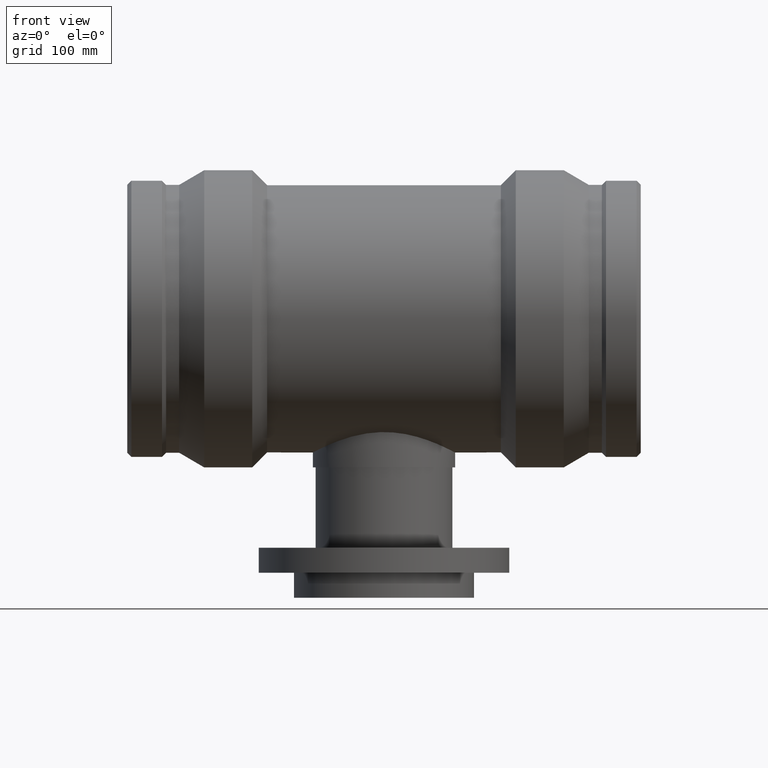
[diagram: clean part render]
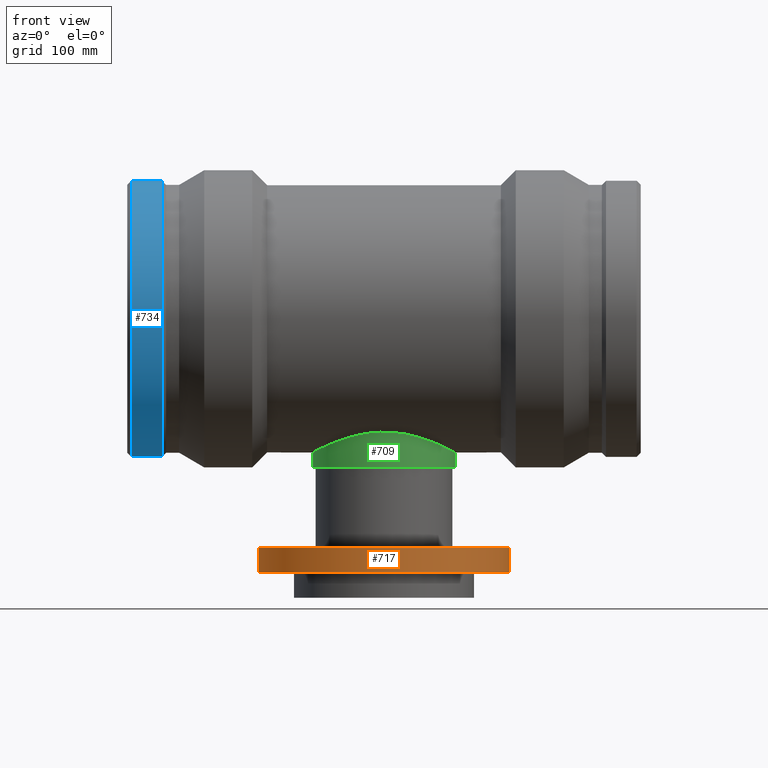
[diagram: same view with three faces highlighted in distinct colors, each labeled with its STEP entity id]
A machine part, front view with three faces highlighted in distinct colors.
Their STEP definitions:

[orange] entity #717 — the highlighted cylindrical surface (bore or boss wall) has radius 110 mm, axis along (-0, 0, -1).
#69=FACE_BOUND('',#319,.T.);
#145=CIRCLE('',#802,110.);
#146=CIRCLE('',#804,110.);
#198=CYLINDRICAL_SURFACE('',#803,110.);
#233=FACE_OUTER_BOUND('',#318,.T.);
#318=EDGE_LOOP('',(#604));
#319=EDGE_LOOP('',(#605));
#446=VERTEX_POINT('',#1538);
#447=VERTEX_POINT('',#1541);
#516=EDGE_CURVE('',#446,#446,#145,.T.);
#517=EDGE_CURVE('',#447,#447,#146,.T.);
#604=ORIENTED_EDGE('',*,*,#516,.T.);
#605=ORIENTED_EDGE('',*,*,#517,.F.);
#717=ADVANCED_FACE('',(#233,#69),#198,.T.);
#802=AXIS2_PLACEMENT_3D('',#1539,#969,#970);
#803=AXIS2_PLACEMENT_3D('',#1540,#971,#972);
#804=AXIS2_PLACEMENT_3D('',#1542,#973,#974);
#969=DIRECTION('center_axis',(-1.22464679914735E-16,0.,-1.));
#970=DIRECTION('ref_axis',(1.,0.,-1.22464679914735E-16));
#971=DIRECTION('center_axis',(-1.22464679914735E-16,0.,-1.));
#972=DIRECTION('ref_axis',(-1.,0.,0.));
#973=DIRECTION('center_axis',(-1.22464679914735E-16,0.,-1.));
#974=DIRECTION('ref_axis',(1.,0.,-1.22464679914735E-16));
#1538=CARTESIAN_POINT('',(-110.,0.,-201.));
#1539=CARTESIAN_POINT('Origin',(-2.46154006628618E-14,0.,-201.));
#1540=CARTESIAN_POINT('Origin',(-2.59625121419239E-14,0.,-212.));
#1541=CARTESIAN_POINT('',(-110.,0.,-223.));
#1542=CARTESIAN_POINT('Origin',(-2.7309623620986E-14,0.,-223.));

[blue] entity #734 — the highlighted cylindrical surface (bore or boss wall) has radius 121.365 mm, axis along (1, 0, 0).
#93=FACE_BOUND('',#360,.T.);
#94=FACE_BOUND('',#361,.T.);
#161=CIRCLE('',#835,121.365);
#162=CIRCLE('',#837,121.365);
#204=CYLINDRICAL_SURFACE('',#836,121.365);
#250=FACE_OUTER_BOUND('',#359,.T.);
#359=EDGE_LOOP('',(#645));
#360=EDGE_LOOP('',(#646));
#361=EDGE_LOOP('',(#647));
#418=B_SPLINE_CURVE_WITH_KNOTS('',3,(#1617,#1618,#1619,#1620,#1621,#1622,
#1623,#1624,#1625,#1626,#1627,#1628,#1629,#1630,#1631,#1632,#1633,#1634,
#1635,#1636,#1637,#1638,#1639,#1640,#1641,#1642,#1643,#1644,#1645,#1646,
#1647,#1648,#1649,#1650),.UNSPECIFIED.,.T.,.F.,(4,2,2,2,2,2,2,2,2,2,2,2,
2,2,2,2,4),(0.,0.29509610945851,0.59019221891702,0.885097172749317,1.18000212658161,
1.47490708041391,1.76981203424621,2.06490814370472,2.36000425316323,2.65510036262174,
2.95019647208025,3.24510142591255,3.54000637974484,3.83491133357714,4.12981628740944,
4.42491239686795,4.72000850632646),.UNSPECIFIED.);
#461=VERTEX_POINT('',#1616);
#464=VERTEX_POINT('',#1657);
#465=VERTEX_POINT('',#1660);
#531=EDGE_CURVE('',#461,#461,#418,.T.);
#534=EDGE_CURVE('',#464,#464,#161,.T.);
#535=EDGE_CURVE('',#465,#465,#162,.T.);
#645=ORIENTED_EDGE('',*,*,#534,.T.);
#646=ORIENTED_EDGE('',*,*,#531,.T.);
#647=ORIENTED_EDGE('',*,*,#535,.F.);
#734=ADVANCED_FACE('',(#250,#93,#94),#204,.T.);
#835=AXIS2_PLACEMENT_3D('',#1658,#1035,#1036);
#836=AXIS2_PLACEMENT_3D('',#1659,#1037,#1038);
#837=AXIS2_PLACEMENT_3D('',#1661,#1039,#1040);
#1035=DIRECTION('center_axis',(1.,0.,0.));
#1036=DIRECTION('ref_axis',(0.,0.,-1.));
#1037=DIRECTION('center_axis',(1.,0.,0.));
#1038=DIRECTION('ref_axis',(0.,1.,0.));
#1039=DIRECTION('center_axis',(1.,0.,0.));
#1040=DIRECTION('ref_axis',(0.,0.,-1.));
#1616=CARTESIAN_POINT('',(-208.4,121.111496105121,-7.8402000088783));
#1617=CARTESIAN_POINT('Ctrl Pts',(-208.4,121.111496105121,-7.8402000088783));
#1618=CARTESIAN_POINT('Ctrl Pts',(-207.416346301805,121.111496105121,-7.8402000088783));
#1619=CARTESIAN_POINT('Ctrl Pts',(-206.367643359373,121.124789604106,-7.64264500917666));
#1620=CARTESIAN_POINT('Ctrl Pts',(-204.439825018296,121.172740010536,-6.8404500551413));
#1621=CARTESIAN_POINT('Ctrl Pts',(-203.560679035478,121.206699457432,-6.23584206225861));
#1622=CARTESIAN_POINT('Ctrl Pts',(-202.17392970318,121.270345628022,-4.842763753959));
#1623=CARTESIAN_POINT('Ctrl Pts',(-201.573561837684,121.304167108906,-3.96155652836328));
#1624=CARTESIAN_POINT('Ctrl Pts',(-200.777586483535,121.351831955943,-2.03169115880176));
#1625=CARTESIAN_POINT('Ctrl Pts',(-200.581978708083,121.365,-0.983016512774324));
#1626=CARTESIAN_POINT('Ctrl Pts',(-200.581978708083,121.365,0.983016512774325));
#1627=CARTESIAN_POINT('Ctrl Pts',(-200.777586483535,121.351831955943,2.03169115880179));
#1628=CARTESIAN_POINT('Ctrl Pts',(-201.573561837684,121.304167108906,3.96155652836331));
#1629=CARTESIAN_POINT('Ctrl Pts',(-202.17392970318,121.270345628022,4.842763753959));
#1630=CARTESIAN_POINT('Ctrl Pts',(-203.560679035478,121.206699457432,6.23584206225861));
#1631=CARTESIAN_POINT('Ctrl Pts',(-204.439825018296,121.172740010536,6.8404500551413));
#1632=CARTESIAN_POINT('Ctrl Pts',(-206.367643359373,121.124789604106,7.64264500917666));
#1633=CARTESIAN_POINT('Ctrl Pts',(-207.416346301805,121.111496105121,7.8402000088783));
#1634=CARTESIAN_POINT('Ctrl Pts',(-209.383653698195,121.111496105121,7.8402000088783));
#1635=CARTESIAN_POINT('Ctrl Pts',(-210.432356640627,121.124789604106,7.64264500917666));
#1636=CARTESIAN_POINT('Ctrl Pts',(-212.360174981704,121.172740010536,6.8404500551413));
#1637=CARTESIAN_POINT('Ctrl Pts',(-213.239320964523,121.206699457432,6.23584206225861));
#1638=CARTESIAN_POINT('Ctrl Pts',(-214.62607029682,121.270345628022,4.842763753959));
#1639=CARTESIAN_POINT('Ctrl Pts',(-215.226438162316,121.304167108906,3.96155652836329));
#1640=CARTESIAN_POINT('Ctrl Pts',(-216.022413516465,121.351831955943,2.03169115880177));
#1641=CARTESIAN_POINT('Ctrl Pts',(-216.218021291917,121.365,0.983016512774325));
#1642=CARTESIAN_POINT('Ctrl Pts',(-216.218021291917,121.365,-0.983016512774324));
#1643=CARTESIAN_POINT('Ctrl Pts',(-216.022413516465,121.351831955943,-2.03169115880177));
#1644=CARTESIAN_POINT('Ctrl Pts',(-215.226438162316,121.304167108906,-3.96155652836329));
#1645=CARTESIAN_POINT('Ctrl Pts',(-214.62607029682,121.270345628022,-4.842763753959));
#1646=CARTESIAN_POINT('Ctrl Pts',(-213.239320964523,121.206699457432,-6.23584206225861));
#1647=CARTESIAN_POINT('Ctrl Pts',(-212.360174981704,121.172740010536,-6.8404500551413));
#1648=CARTESIAN_POINT('Ctrl Pts',(-210.432356640627,121.124789604106,-7.64264500917666));
#1649=CARTESIAN_POINT('Ctrl Pts',(-209.383653698195,121.111496105121,-7.84020000887829));
#1650=CARTESIAN_POINT('Ctrl Pts',(-208.4,121.111496105121,-7.84020000887829));
#1657=CARTESIAN_POINT('',(-221.85905,121.365,0.));
#1658=CARTESIAN_POINT('Origin',(-221.85905,0.,0.));
#1659=CARTESIAN_POINT('Origin',(-208.4,0.,0.));
#1660=CARTESIAN_POINT('',(-194.94095,121.365,0.));
#1661=CARTESIAN_POINT('Origin',(-194.94095,0.,0.));

[green] entity #709 — the highlighted cylindrical surface (bore or boss wall) has radius 62.5 mm, axis along (-0, 0, -1).
#53=FACE_BOUND('',#295,.T.);
#138=CIRCLE('',#788,62.5);
#194=CYLINDRICAL_SURFACE('',#787,62.5);
#225=FACE_OUTER_BOUND('',#294,.T.);
#294=EDGE_LOOP('',(#580));
#295=EDGE_LOOP('',(#581));
#416=B_SPLINE_CURVE_WITH_KNOTS('',3,(#1453,#1454,#1455,#1456,#1457,#1458,
#1459,#1460,#1461,#1462,#1463,#1464,#1465,#1466,#1467,#1468,#1469,#1470,
#1471,#1472,#1473,#1474,#1475,#1476,#1477,#1478,#1479,#1480,#1481,#1482,
#1483,#1484,#1485,#1486,#1487,#1488,#1489,#1490,#1491,#1492,#1493,#1494,
#1495,#1496,#1497,#1498,#1499,#1500,#1501,#1502,#1503,#1504,#1505,#1506,
#1507,#1508,#1509,#1510,#1511,#1512,#1513,#1514,#1515,#1516,#1517,#1518),
 .UNSPECIFIED.,.T.,.F.,(4,2,2,2,2,2,2,2,2,2,2,2,2,2,2,2,2,2,2,2,2,2,2,2,
2,2,2,2,2,2,2,2,4),(0.,1.20718004671123,2.41436009342246,3.6215401401337,
4.82872018684493,6.0315126657023,7.23430514455968,8.43709762341705,9.63989010227442,
10.8426825811318,12.0454750599892,13.2482675388465,14.4510600177039,15.6582400644152,
16.8654201111264,18.0726001578376,19.2797802045489,20.4869602512601,21.6941402979713,
22.9013203446825,24.1085003913938,25.3112928702511,26.5140853491085,27.7168778279659,
28.9196703068233,30.1224627856806,31.325255264538,32.5280477433954,33.7308402222528,
34.938020268964,36.1452003156752,37.3523803623865,38.5595604090977),
 .UNSPECIFIED.);
#438=VERTEX_POINT('',#1450);
#439=VERTEX_POINT('',#1452);
#508=EDGE_CURVE('',#438,#438,#138,.T.);
#509=EDGE_CURVE('',#439,#439,#416,.T.);
#580=ORIENTED_EDGE('',*,*,#508,.F.);
#581=ORIENTED_EDGE('',*,*,#509,.F.);
#709=ADVANCED_FACE('',(#225,#53),#194,.T.);
#787=AXIS2_PLACEMENT_3D('',#1449,#939,#940);
#788=AXIS2_PLACEMENT_3D('',#1451,#941,#942);
#939=DIRECTION('center_axis',(-1.22464679914735E-16,0.,-1.));
#940=DIRECTION('ref_axis',(-1.,0.,0.));
#941=DIRECTION('center_axis',(-1.22464679914735E-16,0.,-1.));
#942=DIRECTION('ref_axis',(1.,0.,-1.22464679914735E-16));
#1449=CARTESIAN_POINT('Origin',(-7.99082036443648E-15,0.,-65.25));
#1450=CARTESIAN_POINT('',(-62.5,0.,-130.5));
#1451=CARTESIAN_POINT('Origin',(-1.5981640728873E-14,0.,-130.5));
#1452=CARTESIAN_POINT('',(-1.22124532708767E-14,62.5,-99.439692779091));
#1453=CARTESIAN_POINT('Ctrl Pts',(-1.22124532708767E-14,62.5,-99.439692779091));
#1454=CARTESIAN_POINT('Ctrl Pts',(-4.02393348903745,62.5,-99.439692779091));
#1455=CARTESIAN_POINT('Ctrl Pts',(-8.14961563923366,62.1053599372436,-99.691187477864));
#1456=CARTESIAN_POINT('Ctrl Pts',(-16.2939755540269,60.4813883252695,-100.684707156254));
#1457=CARTESIAN_POINT('Ctrl Pts',(-20.3130241794805,59.2527795533655,-101.42487240009));
#1458=CARTESIAN_POINT('Ctrl Pts',(-27.9772678113925,56.0427004076859,-103.233287223694));
#1459=CARTESIAN_POINT('Ctrl Pts',(-31.6300735132061,54.0586623142557,-104.300556964816));
#1460=CARTESIAN_POINT('Ctrl Pts',(-38.3710276162715,49.5021692808056,-106.538633318536));
#1461=CARTESIAN_POINT('Ctrl Pts',(-41.459359839794,46.9289878085245,-107.707406599836));
#1462=CARTESIAN_POINT('Ctrl Pts',(-46.9190479640442,41.4692996842743,-109.924743790305));
#1463=CARTESIAN_POINT('Ctrl Pts',(-49.4907469674574,38.3859551662737,-111.056273993475));
#1464=CARTESIAN_POINT('Ctrl Pts',(-54.0511383929314,31.643167175907,-113.162217714912));
#1465=CARTESIAN_POINT('Ctrl Pts',(-56.0401802321842,27.9834791281341,-114.135091193121));
#1466=CARTESIAN_POINT('Ctrl Pts',(-59.2562192010658,20.3046175182304,-115.748074180665));
#1467=CARTESIAN_POINT('Ctrl Pts',(-60.4857937250368,16.2779712978345,-116.388603481805));
#1468=CARTESIAN_POINT('Ctrl Pts',(-62.1079719242389,8.13040070708366,-117.239822391567));
#1469=CARTESIAN_POINT('Ctrl Pts',(-62.5,4.00930826285791,-117.45));
#1470=CARTESIAN_POINT('Ctrl Pts',(-62.5,-4.00930826285792,-117.45));
#1471=CARTESIAN_POINT('Ctrl Pts',(-62.1079719242389,-8.13040070708367,-117.239822391567));
#1472=CARTESIAN_POINT('Ctrl Pts',(-60.4857937250368,-16.2779712978345,-116.388603481805));
#1473=CARTESIAN_POINT('Ctrl Pts',(-59.2562192010658,-20.3046175182304,-115.748074180665));
#1474=CARTESIAN_POINT('Ctrl Pts',(-56.0401802321842,-27.9834791281341,-114.135091193121));
#1475=CARTESIAN_POINT('Ctrl Pts',(-54.0511383929314,-31.6431671759069,-113.162217714912));
#1476=CARTESIAN_POINT('Ctrl Pts',(-49.4907469674574,-38.3859551662737,-111.056273993475));
#1477=CARTESIAN_POINT('Ctrl Pts',(-46.9190479640442,-41.4692996842743,-109.924743790305));
#1478=CARTESIAN_POINT('Ctrl Pts',(-41.459359839794,-46.9289878085245,-107.707406599836));
#1479=CARTESIAN_POINT('Ctrl Pts',(-38.3710276162715,-49.5021692808056,-106.538633318536));
#1480=CARTESIAN_POINT('Ctrl Pts',(-31.6300735132061,-54.0586623142557,-104.300556964816));
#1481=CARTESIAN_POINT('Ctrl Pts',(-27.9772678113925,-56.0427004076859,-103.233287223694));
#1482=CARTESIAN_POINT('Ctrl Pts',(-20.3130241794805,-59.2527795533655,-101.42487240009));
#1483=CARTESIAN_POINT('Ctrl Pts',(-16.2939755540269,-60.4813883252695,-100.684707156254));
#1484=CARTESIAN_POINT('Ctrl Pts',(-8.14961563923364,-62.1053599372436,-99.691187477864));
#1485=CARTESIAN_POINT('Ctrl Pts',(-4.02393348903744,-62.5,-99.439692779091));
#1486=CARTESIAN_POINT('Ctrl Pts',(4.02393348903742,-62.5,-99.439692779091));
#1487=CARTESIAN_POINT('Ctrl Pts',(8.14961563923363,-62.1053599372436,-99.691187477864));
#1488=CARTESIAN_POINT('Ctrl Pts',(16.2939755540268,-60.4813883252695,-100.684707156254));
#1489=CARTESIAN_POINT('Ctrl Pts',(20.3130241794804,-59.2527795533655,-101.42487240009));
#1490=CARTESIAN_POINT('Ctrl Pts',(27.9772678113924,-56.0427004076859,-103.233287223694));
#1491=CARTESIAN_POINT('Ctrl Pts',(31.630073513206,-54.0586623142557,-104.300556964816));
#1492=CARTESIAN_POINT('Ctrl Pts',(38.3710276162715,-49.5021692808056,-106.538633318536));
#1493=CARTESIAN_POINT('Ctrl Pts',(41.4593598397939,-46.9289878085245,-107.707406599836));
#1494=CARTESIAN_POINT('Ctrl Pts',(46.9190479640441,-41.4692996842743,-109.924743790305));
#1495=CARTESIAN_POINT('Ctrl Pts',(49.4907469674574,-38.3859551662737,-111.056273993475));
#1496=CARTESIAN_POINT('Ctrl Pts',(54.0511383929314,-31.643167175907,-113.162217714912));
#1497=CARTESIAN_POINT('Ctrl Pts',(56.0401802321842,-27.9834791281341,-114.135091193121));
#1498=CARTESIAN_POINT('Ctrl Pts',(59.2562192010657,-20.3046175182304,-115.748074180665));
#1499=CARTESIAN_POINT('Ctrl Pts',(60.4857937250368,-16.2779712978345,-116.388603481805));
#1500=CARTESIAN_POINT('Ctrl Pts',(62.1079719242388,-8.13040070708368,-117.239822391567));
#1501=CARTESIAN_POINT('Ctrl Pts',(62.5,-4.00930826285793,-117.45));
#1502=CARTESIAN_POINT('Ctrl Pts',(62.5,4.00930826285791,-117.45));
#1503=CARTESIAN_POINT('Ctrl Pts',(62.1079719242388,8.13040070708366,-117.239822391567));
#1504=CARTESIAN_POINT('Ctrl Pts',(60.4857937250368,16.2779712978345,-116.388603481805));
#1505=CARTESIAN_POINT('Ctrl Pts',(59.2562192010657,20.3046175182304,-115.748074180665));
#1506=CARTESIAN_POINT('Ctrl Pts',(56.0401802321842,27.9834791281341,-114.135091193121));
#1507=CARTESIAN_POINT('Ctrl Pts',(54.0511383929314,31.6431671759069,-113.162217714912));
#1508=CARTESIAN_POINT('Ctrl Pts',(49.4907469674574,38.3859551662737,-111.056273993475));
#1509=CARTESIAN_POINT('Ctrl Pts',(46.9190479640442,41.4692996842743,-109.924743790305));
#1510=CARTESIAN_POINT('Ctrl Pts',(41.4593598397939,46.9289878085245,-107.707406599836));
#1511=CARTESIAN_POINT('Ctrl Pts',(38.3710276162715,49.5021692808056,-106.538633318536));
#1512=CARTESIAN_POINT('Ctrl Pts',(31.6300735132061,54.0586623142557,-104.300556964816));
#1513=CARTESIAN_POINT('Ctrl Pts',(27.9772678113924,56.0427004076859,-103.233287223694));
#1514=CARTESIAN_POINT('Ctrl Pts',(20.3130241794804,59.2527795533655,-101.42487240009));
#1515=CARTESIAN_POINT('Ctrl Pts',(16.2939755540268,60.4813883252695,-100.684707156254));
#1516=CARTESIAN_POINT('Ctrl Pts',(8.14961563923363,62.1053599372436,-99.691187477864));
#1517=CARTESIAN_POINT('Ctrl Pts',(4.02393348903742,62.5,-99.439692779091));
#1518=CARTESIAN_POINT('Ctrl Pts',(-1.22124532708767E-14,62.5,-99.439692779091));